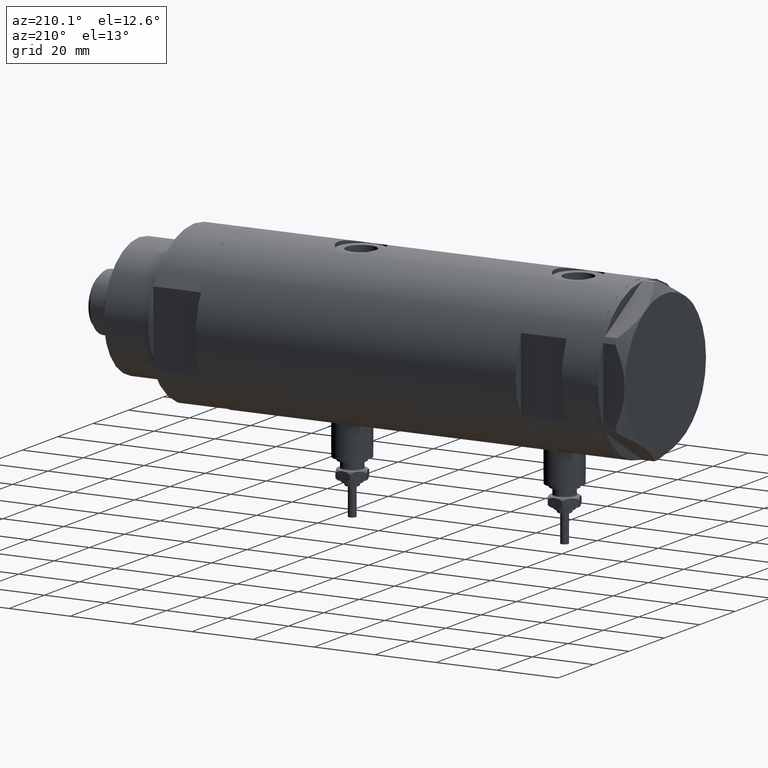
[diagram: clean part render]
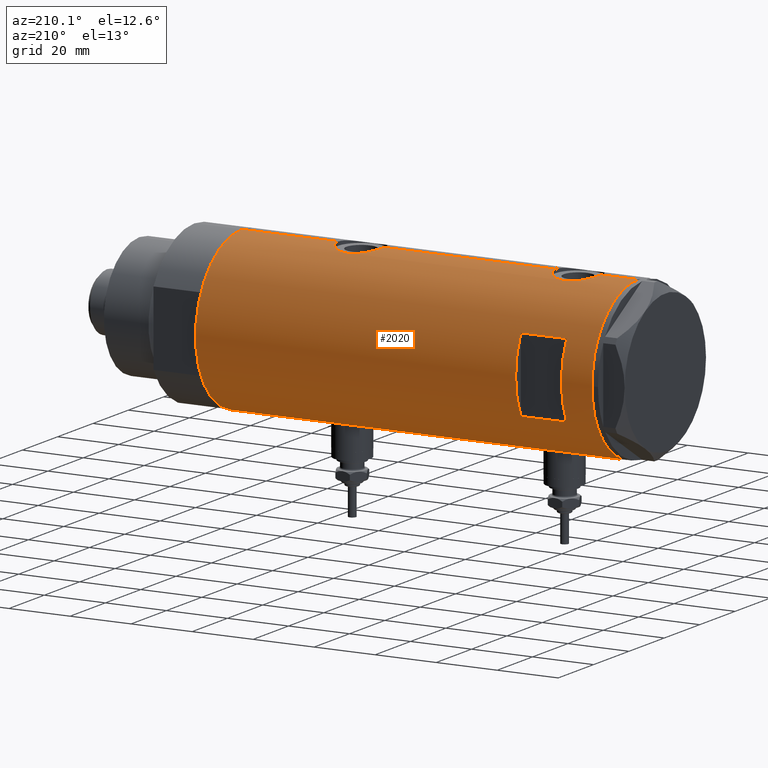
[diagram: same view with one face highlighted and labeled with its STEP entity id]
A machine part, auxiliary view. The second image highlights one B-rep face of the part: STEP entity #2020.
In plain terms, the highlighted cylindrical surface (partial cylindrical patch) has radius 26 mm, axis along (-1, -0, 0).
Its self-contained STEP definition (entity closure, byte-faithful):
#34 = CARTESIAN_POINT ( 'NONE',  ( 26.00000000000000355, 0.4983968644076020582, 37.94999999999999574 ) ) ;
#35 = CARTESIAN_POINT ( 'NONE',  ( 25.41763780493360159, 5.474943943663458157, -20.61823686211066686 ) ) ;
#49 = CARTESIAN_POINT ( 'NONE',  ( 12.12435565298214080, 23.00000000000000355, -64.95000000000000284 ) ) ;
#52 = ORIENTED_EDGE ( 'NONE', *, *, #2459, .T. ) ;
#64 = CARTESIAN_POINT ( 'NONE',  ( 24.97016856345952007, 7.245430721349216618, -27.70303040919392856 ) ) ;
#100 = EDGE_CURVE ( 'NONE', #4957, #748, #2238, .T. ) ;
#157 = CARTESIAN_POINT ( 'NONE',  ( 25.99999999999999645, 0.2455784580650500204, 52.94999999999999574 ) ) ;
#205 = CIRCLE ( 'NONE', #3051, 26.00000000000000355 ) ;
#224 = DIRECTION ( 'NONE',  ( 0.000000000000000000, 0.000000000000000000, 1.000000000000000000 ) ) ;
#247 = CARTESIAN_POINT ( 'NONE',  ( -26.00000000000000355, 3.184081677783118585E-15, -64.95000000000000284 ) ) ;
#252 = CARTESIAN_POINT ( 'NONE',  ( 25.08669247833291394, 6.831361936037319893, 48.55537739403791164 ) ) ;
#273 = CARTESIAN_POINT ( 'NONE',  ( -26.00000000000000355, 3.184077527313362130E-15, 34.70000000000000995 ) ) ;
#281 = CARTESIAN_POINT ( 'NONE',  ( -25.31518616157687873, 5.930210831981639785, -30.66587117207027191 ) ) ;
#308 = EDGE_CURVE ( 'NONE', #5083, #6059, #2968, .T. ) ;
#314 = ORIENTED_EDGE ( 'NONE', *, *, #1534, .F. ) ;
#322 = CARTESIAN_POINT ( 'NONE',  ( -25.36894112891956965, 5.694149517195234544, 38.36517494801691441 ) ) ;
#350 = CARTESIAN_POINT ( 'NONE',  ( -25.85406084573620689, 2.777003695811653738, 46.56412841326095986 ) ) ;
#357 = CARTESIAN_POINT ( 'NONE',  ( 25.88814720404043968, 2.420758939209244343, -32.85288286828453863 ) ) ;
#446 = VERTEX_POINT ( 'NONE', #2910 ) ;
#481 = CARTESIAN_POINT ( 'NONE',  ( -25.95208098418916620, 1.628413954368977290, -34.69806792170714971 ) ) ;
#533 = B_SPLINE_CURVE_WITH_KNOTS ( 'NONE', 3,
 ( #1361, #2263, #2340, #1311, #4651, #357, #2230, #1767, #2724, #3683, #3191, #5155, #849, #6158, #1801, #3715, #3435, #5270, #4324, #64, #4928, #1023, #4862, #3898, #5858, #3932, #2494, #594, #1510, #1883, #5763, #2929, #1424, #960, #35, #2121, #745, #2522, #3116, #2062, #4513, #4000, #4579, #2999, #1234, #4991 ),
 .UNSPECIFIED., .F., .F.,
 ( 4, 2, 2, 2, 2, 2, 2, 2, 2, 2, 2, 2, 2, 2, 2, 2, 2, 2, 2, 2, 2, 2, 4 ),
 ( 2.323866739619147150E-19, 0.001473395154583069609, 0.002210092731874602461, 0.002946790309166135314, 0.004420185463749199718, 0.005156883041040737775, 0.005893580618332274965, 0.007366975772915344139, 0.008840370927498415049, 0.009577068504789943565, 0.01031376608208147208, 0.01178716123666451870, 0.01326055639124756880, 0.01473395154583061542, 0.01547064912312213353, 0.01620734670041365511, 0.01694404427770517321, 0.01768074185499669132, 0.01915413700957973794, 0.02062753216416277763, 0.02210092731874582078, 0.02283762489603734583, 0.02357432247332887087 ),
 .UNSPECIFIED. ) ;
#535 = CARTESIAN_POINT ( 'NONE',  ( 0.000000000000000000, 0.000000000000000000, 54.94999999999999574 ) ) ;
#594 = CARTESIAN_POINT ( 'NONE',  ( 25.08669247833292815, 6.831361936037325222, -22.64462260596210896 ) ) ;
#623 = CARTESIAN_POINT ( 'NONE',  ( 25.93077501166306575, 1.957027822413552220, 52.70697858562407845 ) ) ;
#652 = CARTESIAN_POINT ( 'NONE',  ( 24.89484527721569762, 7.499778575171895945, 44.95449194517064484 ) ) ;
#665 = VERTEX_POINT ( 'NONE', #3986 ) ;
#678 = CARTESIAN_POINT ( 'NONE',  ( 25.20855488770172315, 6.367749707222637667, 49.42002223040957887 ) ) ;
#679 = CARTESIAN_POINT ( 'NONE',  ( -25.38675822915648084, 5.615881323213569587, -25.87693218337989975 ) ) ;
#714 = CARTESIAN_POINT ( 'NONE',  ( -25.23757896588370286, 6.250168635417627350, -29.05675308410500435 ) ) ;
#738 = VERTEX_POINT ( 'NONE', #2433 ) ;
#745 = CARTESIAN_POINT ( 'NONE',  ( 25.59685363299822924, 4.579266302355751606, -19.79027931897348225 ) ) ;
#748 = VERTEX_POINT ( 'NONE', #5640 ) ;
#772 = CARTESIAN_POINT ( 'NONE',  ( -25.38875076695534716, 5.605452563035134617, 38.17814099175895848 ) ) ;
#787 = EDGE_CURVE ( 'NONE', #1889, #1190, #533, .T. ) ;
#805 = CARTESIAN_POINT ( 'NONE',  ( -25.67176285215957421, 4.128807479817785620, 36.24008401548878311 ) ) ;
#806 = CARTESIAN_POINT ( 'NONE',  ( -25.43062364804612940, 5.412314182902757231, -31.78227648580933362 ) ) ;
#827 = ORIENTED_EDGE ( 'NONE', *, *, #2732, .F. ) ;
#849 = CARTESIAN_POINT ( 'NONE',  ( 25.48882460966380137, 5.133289275481216052, -31.22343523597908188 ) ) ;
#895 = CARTESIAN_POINT ( 'NONE',  ( -25.96182217530152769, 1.422664245316465070, 47.03935273092390190 ) ) ;
#917 = DIRECTION ( 'NONE',  ( -0.000000000000000000, -0.000000000000000000, -1.000000000000000000 ) ) ;
#960 = CARTESIAN_POINT ( 'NONE',  ( 25.38117076385348980, 5.641057083563592478, -20.80143420258152531 ) ) ;
#973 = CARTESIAN_POINT ( 'NONE',  ( -25.98789693408479451, 0.8193301824841940917, -34.84948980265348695 ) ) ;
#1023 = CARTESIAN_POINT ( 'NONE',  ( 24.90951684770588059, 7.451587374037536016, -26.73395604521197910 ) ) ;
#1068 = LINE ( 'NONE', #4437, #1566 ) ;
#1077 = CARTESIAN_POINT ( 'NONE',  ( 25.27545867390325185, 6.096774941222090405, 49.82477406957967503 ) ) ;
#1109 = EDGE_CURVE ( 'NONE', #5083, #5749, #4656, .T. ) ;
#1135 = CARTESIAN_POINT ( 'NONE',  ( 25.97197502027376004, 1.230965554787593952, 52.85240824498372803 ) ) ;
#1161 = CARTESIAN_POINT ( 'NONE',  ( -25.57189498399054628, 4.707763994471526381, -24.51909718944451555 ) ) ;
#1168 = ORIENTED_EDGE ( 'NONE', *, *, #4633, .F. ) ;
#1172 = CARTESIAN_POINT ( 'NONE',  ( 26.00000000000000355, -3.975025925197986111E-20, -18.25000000000000355 ) ) ;
#1190 = VERTEX_POINT ( 'NONE', #1172 ) ;
#1229 = CARTESIAN_POINT ( 'NONE',  ( -25.85449082491263795, 2.772892880050689790, -34.26609297485323680 ) ) ;
#1234 = CARTESIAN_POINT ( 'NONE',  ( 26.00000000000001066, 0.2455784580650494098, -18.25000000000000711 ) ) ;
#1259 = CARTESIAN_POINT ( 'NONE',  ( -25.24766879991037172, 6.209837761082653174, 41.76849569029696596 ) ) ;
#1300 = CARTESIAN_POINT ( 'NONE',  ( -26.00000000000000355, 3.184077527325983904E-15, -34.90000000000001279 ) ) ;
#1311 = CARTESIAN_POINT ( 'NONE',  ( 25.94484652078418208, 1.709678645892019455, -33.05665346759175804 ) ) ;
#1330 = CARTESIAN_POINT ( 'NONE',  ( -25.23766275406409321, 6.249830297096026221, 41.36191904555118271 ) ) ;
#1361 = CARTESIAN_POINT ( 'NONE',  ( 26.00000000000000355, 2.393127611988522640E-16, -33.25000000000000000 ) ) ;
#1406 = CARTESIAN_POINT ( 'NONE',  ( -25.59680708126580839, 4.563450671387942137, -32.92543949979971529 ) ) ;
#1424 = CARTESIAN_POINT ( 'NONE',  ( 25.31017500740586357, 5.951503630041862891, -21.17950407362598497 ) ) ;
#1450 = CARTESIAN_POINT ( 'NONE',  ( 12.12435565298213724, 23.00000000000000355, 39.95000000000000284 ) ) ;
#1510 = CARTESIAN_POINT ( 'NONE',  ( 25.11550258961939974, 6.725017566862033114, -22.42071522193981536 ) ) ;
#1534 = EDGE_CURVE ( 'NONE', #446, #4957, #1808, .T. ) ;
#1535 = CARTESIAN_POINT ( 'NONE',  ( 25.38132706741445688, 5.649034551923787895, 40.49268047185955766 ) ) ;
#1566 = VECTOR ( 'NONE', #4022, 1000.000000000000000 ) ;
#1570 = CARTESIAN_POINT ( 'NONE',  ( 26.00000000000000355, -3.975025925197986111E-20, 52.95000000000000284 ) ) ;
#1571 = CARTESIAN_POINT ( 'NONE',  ( -25.95015815577422913, 1.621168830448741938, -22.61041429560181726 ) ) ;
#1600 = CARTESIAN_POINT ( 'NONE',  ( 24.95233689475078975, 7.306396477445178839, 43.73896186853335877 ) ) ;
#1628 = CARTESIAN_POINT ( 'NONE',  ( 24.97016856345953073, 7.245430721349219283, 43.49696959080609560 ) ) ;
#1629 = CARTESIAN_POINT ( 'NONE',  ( -25.27696731428696708, 6.089059008147564178, -27.22583693040520458 ) ) ;
#1650 = VERTEX_POINT ( 'NONE', #5182 ) ;
#1659 = ORIENTED_EDGE ( 'NONE', *, *, #2717, .F. ) ;
#1661 = CARTESIAN_POINT ( 'NONE',  ( 25.78997056644825392, 3.329333406239039839, 52.18834808433850014 ) ) ;
#1694 = CARTESIAN_POINT ( 'NONE',  ( -25.38675822915648084, 5.615881323213569587, 43.72306781662011588 ) ) ;
#1695 = CARTESIAN_POINT ( 'NONE',  ( -25.28673619335055989, 6.048783215285170378, -30.27550990348180093 ) ) ;
#1727 = CARTESIAN_POINT ( 'NONE',  ( -25.59680708126580129, 4.563450671387941249, 36.67456050020032166 ) ) ;
#1728 = CARTESIAN_POINT ( 'NONE',  ( -25.49884629689152860, 5.081547904122037274, -32.29439805696090815 ) ) ;
#1764 = EDGE_CURVE ( 'NONE', #1190, #3169, #2600, .T. ) ;
#1767 = CARTESIAN_POINT ( 'NONE',  ( 25.78922176490238272, 3.335318700939509995, -32.48550568766476232 ) ) ;
#1771 = LINE ( 'NONE', #3376, #4392 ) ;
#1791 = CARTESIAN_POINT ( 'NONE',  ( -25.57189498399055338, 4.707763994471528157, 45.08090281055549298 ) ) ;
#1801 = CARTESIAN_POINT ( 'NONE',  ( 25.30960479024497545, 5.958491152160519277, -30.33139677679963953 ) ) ;
#1808 = LINE ( 'NONE', #5278, #2152 ) ;
#1828 = EDGE_LOOP ( 'NONE', ( #1902, #52, #3510, #4023, #6093, #2811, #5312, #314, #1659, #2599, #4254, #4736 ) ) ;
#1883 = CARTESIAN_POINT ( 'NONE',  ( 25.17636585680006434, 6.493453152855879651, -21.98900750337197607 ) ) ;
#1889 = VERTEX_POINT ( 'NONE', #4450 ) ;
#1893 = CARTESIAN_POINT ( 'NONE',  ( -25.99759026373432391, 0.4091325989570631649, -34.88999890044900809 ) ) ;
#1902 = ORIENTED_EDGE ( 'NONE', *, *, #2865, .T. ) ;
#1904 = CARTESIAN_POINT ( 'NONE',  ( -25.99999999999999289, 0.2043916521039015888, 34.69999999999999574 ) ) ;
#1911 = CARTESIAN_POINT ( 'NONE',  ( 25.92799636947105313, 1.948138538329398317, 38.20322312211786198 ) ) ;
#2003 = CARTESIAN_POINT ( 'NONE',  ( -25.99009688862344447, 0.8219492608955325519, -22.44084060773424838 ) ) ;
#2020 = ADVANCED_FACE ( 'NONE', ( #4782, #2387 ), #5318, .T. ) ;
#2028 = CARTESIAN_POINT ( 'NONE',  ( 25.48882460966379782, 5.133289275481216940, 39.97656476402091386 ) ) ;
#2032 = DIRECTION ( 'NONE',  ( 0.000000000000000000, 0.000000000000000000, 1.000000000000000000 ) ) ;
#2062 = CARTESIAN_POINT ( 'NONE',  ( 25.89067367629246874, 2.424883365422553894, -18.63594795494832113 ) ) ;
#2115 = CARTESIAN_POINT ( 'NONE',  ( 12.12435565298214080, 23.00000000000000355, 54.94999999999999574 ) ) ;
#2121 = CARTESIAN_POINT ( 'NONE',  ( 25.52590365620542912, 4.955152228772150558, -20.09876272411762343 ) ) ;
#2152 = VECTOR ( 'NONE', #2380, 1000.000000000000000 ) ;
#2153 = CARTESIAN_POINT ( 'NONE',  ( -25.81251897318925614, 3.135439098787738743, 46.37199178085172235 ) ) ;
#2191 = CIRCLE ( 'NONE', #5743, 26.00000000000000355 ) ;
#2192 = CARTESIAN_POINT ( 'NONE',  ( -25.49884629689154281, 5.081547904122033721, 37.30560194303911459 ) ) ;
#2193 = CARTESIAN_POINT ( 'NONE',  ( -25.92432690655986605, 2.018143994254073093, -34.57929422822715537 ) ) ;
#2223 = CARTESIAN_POINT ( 'NONE',  ( -25.45277932469922177, 5.307477387851098349, -31.95672800165311855 ) ) ;
#2230 = CARTESIAN_POINT ( 'NONE',  ( 25.86510134953875450, 2.654921787384014298, -32.76867061694905203 ) ) ;
#2238 = CIRCLE ( 'NONE', #3646, 26.00000000000000355 ) ;
#2263 = CARTESIAN_POINT ( 'NONE',  ( 26.00000000000000711, 0.4983968644076019472, -33.25000000000000000 ) ) ;
#2327 = DIRECTION ( 'NONE',  ( 0.000000000000000000, 0.000000000000000000, 1.000000000000000000 ) ) ;
#2334 = CARTESIAN_POINT ( 'NONE',  ( -25.98057228346870673, 1.024901789261881913, 34.78119414145174915 ) ) ;
#2340 = CARTESIAN_POINT ( 'NONE',  ( 25.98569222077104612, 0.9879514382926373184, -33.20081846687561011 ) ) ;
#2353 = CARTESIAN_POINT ( 'NONE',  ( -26.00000000000000000, 0.2043916521038990630, -34.90000000000001279 ) ) ;
#2363 = CARTESIAN_POINT ( 'NONE',  ( -26.00000000000000355, 3.184077527313362130E-15, 34.70000000000000995 ) ) ;
#2380 = DIRECTION ( 'NONE',  ( 0.000000000000000000, 0.000000000000000000, 1.000000000000000000 ) ) ;
#2387 = FACE_OUTER_BOUND ( 'NONE', #1828, .T. ) ;
#2426 = CARTESIAN_POINT ( 'NONE',  ( 0.000000000000000000, 0.000000000000000000, 39.95000000000000284 ) ) ;
#2433 = CARTESIAN_POINT ( 'NONE',  ( -12.12435565298214080, 23.00000000000000355, 39.95000000000000284 ) ) ;
#2436 = VECTOR ( 'NONE', #4218, 1000.000000000000000 ) ;
#2446 = CARTESIAN_POINT ( 'NONE',  ( -26.00000000000000355, 3.184077527325983904E-15, -34.90000000000001279 ) ) ;
#2459 = EDGE_CURVE ( 'NONE', #1650, #6059, #1771, .T. ) ;
#2490 = CARTESIAN_POINT ( 'NONE',  ( 25.30960479024496834, 5.958491152160524607, 40.86860322320038819 ) ) ;
#2491 = CARTESIAN_POINT ( 'NONE',  ( -25.52242378584899996, 4.965907353613392416, -24.83280397078263135 ) ) ;
#2494 = CARTESIAN_POINT ( 'NONE',  ( 25.00820649268565532, 7.115348876445588111, -23.32815999524548900 ) ) ;
#2519 = CARTESIAN_POINT ( 'NONE',  ( 25.38117076385347914, 5.641057083563588925, 50.39856579741849885 ) ) ;
#2522 = CARTESIAN_POINT ( 'NONE',  ( 25.72868876879097400, 3.768709330223694920, -19.24732513129935541 ) ) ;
#2557 = CARTESIAN_POINT ( 'NONE',  ( 25.89067367629246164, 2.424883365422555670, 52.56405204505168172 ) ) ;
#2558 = CARTESIAN_POINT ( 'NONE',  ( -25.33346170681505072, 5.849967696906719361, -26.44052947900495099 ) ) ;
#2594 = CARTESIAN_POINT ( 'NONE',  ( -25.24766879991037172, 6.209837761082654950, -27.83150430970304967 ) ) ;
#2599 = ORIENTED_EDGE ( 'NONE', *, *, #1764, .F. ) ;
#2600 = LINE ( 'NONE', #4520, #4290 ) ;
#2613 = ORIENTED_EDGE ( 'NONE', *, *, #5685, .F. ) ;
#2622 = CARTESIAN_POINT ( 'NONE',  ( -26.00000000000000355, 6.504536358106463690E-16, -22.40000000000000568 ) ) ;
#2625 = DIRECTION ( 'NONE',  ( 1.000000000000000000, 0.000000000000000000, 0.000000000000000000 ) ) ;
#2651 = CARTESIAN_POINT ( 'NONE',  ( -25.43062364804612230, 5.412314182902753679, 37.81772351419070333 ) ) ;
#2689 = CARTESIAN_POINT ( 'NONE',  ( -25.85449082491264861, 2.772892880050687126, 35.33390702514679305 ) ) ;
#2690 = CARTESIAN_POINT ( 'NONE',  ( -25.98057228346869607, 1.024901789261881246, -34.81880585854827359 ) ) ;
#2715 = CARTESIAN_POINT ( 'NONE',  ( -26.00000000000000711, 0.4145874687851189289, 47.20000000000000995 ) ) ;
#2717 = EDGE_CURVE ( 'NONE', #3169, #446, #4184, .T. ) ;
#2724 = CARTESIAN_POINT ( 'NONE',  ( 25.72923282622329211, 3.765147152416742138, -32.25485575784708914 ) ) ;
#2732 = EDGE_CURVE ( 'NONE', #738, #4613, #4509, .T. ) ;
#2811 = ORIENTED_EDGE ( 'NONE', *, *, #3039, .T. ) ;
#2844 = CIRCLE ( 'NONE', #3365, 26.00000000000000355 ) ;
#2847 = EDGE_CURVE ( 'NONE', #5857, #5749, #2936, .T. ) ;
#2865 = EDGE_CURVE ( 'NONE', #665, #1650, #205, .T. ) ;
#2870 = DIRECTION ( 'NONE',  ( -0.000000000000000000, -0.000000000000000000, -1.000000000000000000 ) ) ;
#2899 = CARTESIAN_POINT ( 'NONE',  ( 25.94484652078419273, 1.709678645892021009, 38.14334653240825190 ) ) ;
#2910 = CARTESIAN_POINT ( 'NONE',  ( 26.00000000000000355, -3.975025925197986111E-20, 52.95000000000000284 ) ) ;
#2929 = CARTESIAN_POINT ( 'NONE',  ( 25.27545867390324474, 6.096774941222093069, -21.37522593042035268 ) ) ;
#2936 = B_SPLINE_CURVE_WITH_KNOTS ( 'NONE', 3,
 ( #3236, #2715, #5204, #895, #4738, #5143, #4673, #350, #2153, #4201, #6146, #1791, #3701, #6045, #1694, #3605, #5663, #5172, #5553, #1259, #1330, #3211, #3110, #5113, #4643, #322, #772, #2651, #4609, #2192, #4132, #6077, #1727, #805, #3630, #5587, #2689, #5233, #4765, #2334, #3819, #6209, #1904, #2363 ),
 .UNSPECIFIED., .F., .F.,
 ( 4, 2, 2, 2, 2, 2, 2, 2, 2, 2, 2, 2, 2, 2, 2, 2, 2, 2, 2, 2, 2, 4 ),
 ( 2.732276935479321607E-19, 0.001225774033668403139, 0.001838661050502602649, 0.002451548067336802375, 0.003677322101005202262, 0.004903096134673601281, 0.006128870168342001601, 0.007354644202010401054, 0.007967531218844600346, 0.008580418235678800506, 0.009806192269347199092, 0.01103196630301559768, 0.01225774033668399626, 0.01287062735351819469, 0.01348351437035239485, 0.01409640138718659501, 0.01470928840402079343, 0.01593506243768920069, 0.01716083647135761142, 0.01838661050502602215, 0.01899949752186022578, 0.01961238453869442941 ),
 .UNSPECIFIED. ) ;
#2960 = VECTOR ( 'NONE', #917, 1000.000000000000000 ) ;
#2965 = CARTESIAN_POINT ( 'NONE',  ( 25.17636585680005368, 6.493453152855872546, 49.21099249662802322 ) ) ;
#2967 = CARTESIAN_POINT ( 'NONE',  ( -25.81251897318926325, 3.135439098787736079, -23.22800821914827907 ) ) ;
#2968 = B_SPLINE_CURVE_WITH_KNOTS ( 'NONE', 3,
 ( #2622, #5914, #2003, #3529, #1571, #4031, #3930, #4547, #2967, #4988, #4925, #1161, #2491, #3470, #679, #2558, #4510, #5982, #1629, #2594, #5029, #714, #5114, #1695, #281, #5144, #6108, #806, #2223, #1728, #3606, #5554, #1406, #3667, #5588, #5627, #1229, #2193, #481, #2690, #973, #1893, #2353, #1300 ),
 .UNSPECIFIED., .F., .F.,
 ( 4, 2, 2, 2, 2, 2, 2, 2, 2, 2, 2, 2, 2, 2, 2, 2, 2, 2, 2, 2, 2, 4 ),
 ( 6.317748427911702731E-19, 0.001225774033668404657, 0.001838661050502606769, 0.002451548067336808447, 0.003677322101005209200, 0.004903096134673610822, 0.006128870168342010274, 0.007354644202010409727, 0.007967531218844607285, 0.008580418235678805711, 0.009806192269347214704, 0.01103196630301562370, 0.01225774033668403096, 0.01287062735351823459, 0.01348351437035243995, 0.01409640138718664358, 0.01470928840402084894, 0.01593506243768924233, 0.01716083647135763571, 0.01838661050502602909, 0.01899949752186022925, 0.01961238453869442941 ),
 .UNSPECIFIED. ) ;
#2969 = DIRECTION ( 'NONE',  ( 1.000000000000000000, -5.329070518200751394E-15, 0.000000000000000000 ) ) ;
#2997 = CARTESIAN_POINT ( 'NONE',  ( 25.98255381630415428, 0.9836221648041301169, 52.88933098058191717 ) ) ;
#2999 = CARTESIAN_POINT ( 'NONE',  ( 25.99652140603931372, 0.4914164889130555047, -18.26203179519542985 ) ) ;
#3025 = CARTESIAN_POINT ( 'NONE',  ( 25.99652140603931016, 0.4914164889130518965, 52.93796820480459075 ) ) ;
#3039 = EDGE_CURVE ( 'NONE', #5857, #748, #3045, .T. ) ;
#3045 = LINE ( 'NONE', #247, #5829 ) ;
#3051 = AXIS2_PLACEMENT_3D ( 'NONE', #4286, #4316, #3844 ) ;
#3086 = CARTESIAN_POINT ( 'NONE',  ( 0.000000000000000000, 0.000000000000000000, 64.95000000000000284 ) ) ;
#3100 = CARTESIAN_POINT ( 'NONE',  ( -26.00000000000000355, 6.504536358106463690E-16, -22.40000000000000568 ) ) ;
#3110 = CARTESIAN_POINT ( 'NONE',  ( -25.24784248027030031, 6.209126813737962713, 40.12731838311943733 ) ) ;
#3116 = CARTESIAN_POINT ( 'NONE',  ( 25.78997056644825392, 3.329333406239042059, -19.01165191566154533 ) ) ;
#3131 = CARTESIAN_POINT ( 'NONE',  ( 26.00000000000000355, 0.000000000000000000, 64.95000000000000284 ) ) ;
#3169 = VERTEX_POINT ( 'NONE', #6096 ) ;
#3191 = CARTESIAN_POINT ( 'NONE',  ( 25.59528664075984494, 4.573671112500301561, -31.69909503516726801 ) ) ;
#3211 = CARTESIAN_POINT ( 'NONE',  ( -25.23757896588370286, 6.250168635417627350, 40.54324691589500418 ) ) ;
#3236 = CARTESIAN_POINT ( 'NONE',  ( -26.00000000000000355, -2.813058302341337106E-16, 47.20000000000000284 ) ) ;
#3293 = CARTESIAN_POINT ( 'NONE',  ( -12.12435565298214080, 23.00000000000000355, 54.94999999999999574 ) ) ;
#3365 = AXIS2_PLACEMENT_3D ( 'NONE', #535, #2870, #2969 ) ;
#3371 = CARTESIAN_POINT ( 'NONE',  ( 25.98569222077104257, 0.9879514382926377625, 37.99918153312438562 ) ) ;
#3376 = CARTESIAN_POINT ( 'NONE',  ( -26.00000000000000355, 3.184081677783118585E-15, -64.95000000000000284 ) ) ;
#3432 = CARTESIAN_POINT ( 'NONE',  ( 25.31017500740586357, 5.951503630041860227, 50.02049592637403919 ) ) ;
#3435 = CARTESIAN_POINT ( 'NONE',  ( 25.11254978876589306, 6.737777305585156640, -29.08025351746412923 ) ) ;
#3469 = CARTESIAN_POINT ( 'NONE',  ( 25.17424625143662453, 6.506691718592097828, 41.68758373966274888 ) ) ;
#3470 = CARTESIAN_POINT ( 'NONE',  ( -25.42927140605241121, 5.422776733968212248, -25.51556003986717158 ) ) ;
#3499 = CARTESIAN_POINT ( 'NONE',  ( 25.72868876879096689, 3.768709330223694920, 51.95267486870065454 ) ) ;
#3510 = ORIENTED_EDGE ( 'NONE', *, *, #308, .F. ) ;
#3529 = CARTESIAN_POINT ( 'NONE',  ( -25.96182217530153125, 1.422664245316465514, -22.56064726907610662 ) ) ;
#3605 = CARTESIAN_POINT ( 'NONE',  ( -25.33346170681504717, 5.849967696906719361, 43.15947052099508596 ) ) ;
#3606 = CARTESIAN_POINT ( 'NONE',  ( -25.52275868012767290, 4.960454986366449326, -32.45761629406632665 ) ) ;
#3630 = CARTESIAN_POINT ( 'NONE',  ( -25.72087293759780380, 3.814831448865741770, 35.98261705172143365 ) ) ;
#3646 = AXIS2_PLACEMENT_3D ( 'NONE', #3086, #4135, #2625 ) ;
#3667 = CARTESIAN_POINT ( 'NONE',  ( -25.67176285215957066, 4.128807479817786508, -33.35991598451123963 ) ) ;
#3683 = CARTESIAN_POINT ( 'NONE',  ( 25.63006864069250312, 4.375159448492143888, -31.84654411758883086 ) ) ;
#3701 = CARTESIAN_POINT ( 'NONE',  ( -25.52242378584899285, 4.965907353613394193, 44.76719602921738783 ) ) ;
#3714 = DIRECTION ( 'NONE',  ( -1.000000000000000000, -5.329070518200751394E-15, 0.000000000000000000 ) ) ;
#3715 = CARTESIAN_POINT ( 'NONE',  ( 25.17424625143663164, 6.506691718592095164, -29.51241626033726817 ) ) ;
#3728 = VERTEX_POINT ( 'NONE', #1450 ) ;
#3785 = DIRECTION ( 'NONE',  ( 1.000000000000000000, 0.000000000000000000, 0.000000000000000000 ) ) ;
#3819 = CARTESIAN_POINT ( 'NONE',  ( -25.98789693408479451, 0.8193301824841956460, 34.75051019734654290 ) ) ;
#3824 = CARTESIAN_POINT ( 'NONE',  ( 25.88814720404043257, 2.420758939209243898, 38.34711713171545000 ) ) ;
#3827 = EDGE_CURVE ( 'NONE', #4613, #4304, #2844, .T. ) ;
#3844 = DIRECTION ( 'NONE',  ( 1.000000000000000000, 0.000000000000000000, 0.000000000000000000 ) ) ;
#3898 = CARTESIAN_POINT ( 'NONE',  ( 24.89471231507667781, 7.500219916954786292, -25.26121773116972591 ) ) ;
#3929 = CARTESIAN_POINT ( 'NONE',  ( 25.63006864069250668, 4.375159448492148329, 39.35345588241118975 ) ) ;
#3930 = CARTESIAN_POINT ( 'NONE',  ( -25.90661719257679252, 2.209805098346973917, -22.80011254218480587 ) ) ;
#3932 = CARTESIAN_POINT ( 'NONE',  ( 24.96662810169868862, 7.257932614256870529, -23.79702690473265747 ) ) ;
#3958 = CARTESIAN_POINT ( 'NONE',  ( -12.12435565298214080, 23.00000000000000355, -64.95000000000000284 ) ) ;
#3986 = CARTESIAN_POINT ( 'NONE',  ( 26.00000000000000355, 0.000000000000000000, -64.95000000000000284 ) ) ;
#4000 = CARTESIAN_POINT ( 'NONE',  ( 25.97197502027376714, 1.230965554787595728, -18.34759175501625350 ) ) ;
#4022 = DIRECTION ( 'NONE',  ( 0.000000000000000000, 0.000000000000000000, 1.000000000000000000 ) ) ;
#4023 = ORIENTED_EDGE ( 'NONE', *, *, #1109, .T. ) ;
#4031 = CARTESIAN_POINT ( 'NONE',  ( -25.92257874449350652, 2.014648337067150408, -22.73003581636324810 ) ) ;
#4059 = CARTESIAN_POINT ( 'NONE',  ( 24.89471231507667071, 7.500219916954787180, 45.93878226883028759 ) ) ;
#4132 = CARTESIAN_POINT ( 'NONE',  ( -25.52275868012767646, 4.960454986366448438, 37.14238370593369609 ) ) ;
#4135 = DIRECTION ( 'NONE',  ( 0.000000000000000000, 0.000000000000000000, 1.000000000000000000 ) ) ;
#4178 = CARTESIAN_POINT ( 'NONE',  ( -26.00000000000000355, 3.184081677783118585E-15, -64.95000000000000284 ) ) ;
#4184 = B_SPLINE_CURVE_WITH_KNOTS ( 'NONE', 3,
 ( #4322, #34, #3371, #2899, #1911, #3824, #4859, #5788, #4377, #3929, #5480, #5913, #2028, #1535, #2490, #3469, #5517, #5950, #4546, #1628, #1600, #4443, #652, #4059, #4987, #5981, #5394, #252, #5426, #2965, #678, #1077, #3432, #2519, #5886, #4924, #6010, #3499, #1661, #2557, #623, #1135, #2997, #3025, #157, #1570 ),
 .UNSPECIFIED., .F., .F.,
 ( 4, 2, 2, 2, 2, 2, 2, 2, 2, 2, 2, 2, 2, 2, 2, 2, 2, 2, 2, 2, 2, 2, 4 ),
 ( 2.323866739619147150E-19, 0.001473395154583068958, 0.002210092731874605497, 0.002946790309166141819, 0.004420185463749206657, 0.005156883041040739510, 0.005893580618332274097, 0.007366975772915325057, 0.008840370927498376885, 0.009577068504789901932, 0.01031376608208142698, 0.01178716123666447707, 0.01326055639124752716, 0.01473395154583057726, 0.01547064912312210404, 0.01620734670041363082, 0.01694404427770515587, 0.01768074185499668438, 0.01915413700957973447, 0.02062753216416278457, 0.02210092731874583813, 0.02283762489603735971, 0.02357432247332888128 ),
 .UNSPECIFIED. ) ;
#4201 = CARTESIAN_POINT ( 'NONE',  ( -25.72105193281917224, 3.813738527046911297, 45.91833691099433423 ) ) ;
#4218 = DIRECTION ( 'NONE',  ( 0.000000000000000000, 0.000000000000000000, 1.000000000000000000 ) ) ;
#4254 = ORIENTED_EDGE ( 'NONE', *, *, #787, .F. ) ;
#4286 = CARTESIAN_POINT ( 'NONE',  ( 0.000000000000000000, 0.000000000000000000, -64.95000000000000284 ) ) ;
#4290 = VECTOR ( 'NONE', #2032, 1000.000000000000000 ) ;
#4294 = AXIS2_PLACEMENT_3D ( 'NONE', #5285, #2327, #3785 ) ;
#4304 = VERTEX_POINT ( 'NONE', #2115 ) ;
#4316 = DIRECTION ( 'NONE',  ( 0.000000000000000000, 0.000000000000000000, 1.000000000000000000 ) ) ;
#4320 = EDGE_CURVE ( 'NONE', #665, #1889, #1068, .T. ) ;
#4322 = CARTESIAN_POINT ( 'NONE',  ( 26.00000000000000355, 2.393127611988522640E-16, 37.95000000000000284 ) ) ;
#4324 = CARTESIAN_POINT ( 'NONE',  ( 25.01140519645288407, 7.101774040639619479, -28.17392235700823733 ) ) ;
#4334 = LINE ( 'NONE', #49, #2960 ) ;
#4353 = DIRECTION ( 'NONE',  ( 0.000000000000000000, 0.000000000000000000, 1.000000000000000000 ) ) ;
#4377 = CARTESIAN_POINT ( 'NONE',  ( 25.72923282622329211, 3.765147152416744802, 38.94514424215291371 ) ) ;
#4392 = VECTOR ( 'NONE', #4353, 1000.000000000000000 ) ;
#4437 = CARTESIAN_POINT ( 'NONE',  ( 26.00000000000000355, 0.000000000000000000, -64.95000000000000284 ) ) ;
#4443 = CARTESIAN_POINT ( 'NONE',  ( 24.90951684770588059, 7.451587374037537792, 44.46604395478804861 ) ) ;
#4450 = CARTESIAN_POINT ( 'NONE',  ( 26.00000000000000355, 2.393127611988522640E-16, -33.25000000000000000 ) ) ;
#4509 = LINE ( 'NONE', #3958, #5726 ) ;
#4510 = CARTESIAN_POINT ( 'NONE',  ( -25.31738333113901973, 5.918941409682879851, -26.63242077527679541 ) ) ;
#4513 = CARTESIAN_POINT ( 'NONE',  ( 25.93077501166307286, 1.957027822413548890, -18.49302141437590663 ) ) ;
#4520 = CARTESIAN_POINT ( 'NONE',  ( 26.00000000000000355, 0.000000000000000000, -64.95000000000000284 ) ) ;
#4546 = CARTESIAN_POINT ( 'NONE',  ( 25.01140519645289828, 7.101774040639625696, 43.02607764299177973 ) ) ;
#4547 = CARTESIAN_POINT ( 'NONE',  ( -25.85406084573621399, 2.777003695811652406, -23.03587158673905222 ) ) ;
#4579 = CARTESIAN_POINT ( 'NONE',  ( 25.98255381630416494, 0.9836221648041316712, -18.31066901941808212 ) ) ;
#4609 = CARTESIAN_POINT ( 'NONE',  ( -25.45277932469921822, 5.307477387851097461, 37.64327199834690418 ) ) ;
#4613 = VERTEX_POINT ( 'NONE', #3293 ) ;
#4633 = EDGE_CURVE ( 'NONE', #4304, #3728, #4334, .T. ) ;
#4643 = CARTESIAN_POINT ( 'NONE',  ( -25.31518616157687163, 5.930210831981637121, 38.93412882792975438 ) ) ;
#4651 = CARTESIAN_POINT ( 'NONE',  ( 25.92799636947105668, 1.948138538329397651, -32.99677687788214797 ) ) ;
#4656 = LINE ( 'NONE', #4178, #2436 ) ;
#4673 = CARTESIAN_POINT ( 'NONE',  ( -25.90661719257679252, 2.209805098346976138, 46.79988745781523107 ) ) ;
#4736 = ORIENTED_EDGE ( 'NONE', *, *, #4320, .F. ) ;
#4738 = CARTESIAN_POINT ( 'NONE',  ( -25.95015815577423268, 1.621168830448741938, 46.98958570439819482 ) ) ;
#4765 = CARTESIAN_POINT ( 'NONE',  ( -25.95208098418916620, 1.628413954368980399, 34.90193207829285882 ) ) ;
#4782 = FACE_BOUND ( 'NONE', #4995, .T. ) ;
#4859 = CARTESIAN_POINT ( 'NONE',  ( 25.86510134953875450, 2.654921787384014298, 38.43132938305095792 ) ) ;
#4862 = CARTESIAN_POINT ( 'NONE',  ( 24.89484527721569052, 7.499778575171895056, -26.24550805482937932 ) ) ;
#4924 = CARTESIAN_POINT ( 'NONE',  ( 25.52590365620542912, 4.955152228772151446, 51.10123727588237585 ) ) ;
#4925 = CARTESIAN_POINT ( 'NONE',  ( -25.67095236150574067, 4.133649689219789813, -23.94464771725742480 ) ) ;
#4928 = CARTESIAN_POINT ( 'NONE',  ( 24.95233689475079686, 7.306396477445174398, -27.46103813146666894 ) ) ;
#4957 = VERTEX_POINT ( 'NONE', #3131 ) ;
#4987 = CARTESIAN_POINT ( 'NONE',  ( 24.90976107960111818, 7.450765568638821890, 46.43882869351466525 ) ) ;
#4988 = CARTESIAN_POINT ( 'NONE',  ( -25.72105193281918645, 3.813738527046909965, -23.68166308900569206 ) ) ;
#4991 = CARTESIAN_POINT ( 'NONE',  ( 26.00000000000000355, -3.975025925197986111E-20, -18.25000000000000355 ) ) ;
#4995 = EDGE_LOOP ( 'NONE', ( #2613, #1168, #5321, #827 ) ) ;
#5018 = DIRECTION ( 'NONE',  ( 0.000000000000000000, 0.000000000000000000, 1.000000000000000000 ) ) ;
#5029 = CARTESIAN_POINT ( 'NONE',  ( -25.23766275406409676, 6.249830297096026221, -28.23808095444883293 ) ) ;
#5083 = VERTEX_POINT ( 'NONE', #3100 ) ;
#5113 = CARTESIAN_POINT ( 'NONE',  ( -25.28673619335055278, 6.048783215285168602, 39.32449009651818983 ) ) ;
#5114 = CARTESIAN_POINT ( 'NONE',  ( -25.24784248027029321, 6.209126813737962713, -29.47268161688058896 ) ) ;
#5143 = CARTESIAN_POINT ( 'NONE',  ( -25.92257874449351007, 2.014648337067150408, 46.86996418363678174 ) ) ;
#5144 = CARTESIAN_POINT ( 'NONE',  ( -25.36894112891956610, 5.694149517195235433, -31.23482505198308701 ) ) ;
#5155 = CARTESIAN_POINT ( 'NONE',  ( 25.52465069878074644, 4.952713637311400241, -31.38744860815255322 ) ) ;
#5172 = CARTESIAN_POINT ( 'NONE',  ( -25.28915991580759837, 6.038390257328908106, 42.57552651146906442 ) ) ;
#5182 = CARTESIAN_POINT ( 'NONE',  ( -26.00000000000000355, 3.184081677783118585E-15, -64.95000000000000284 ) ) ;
#5204 = CARTESIAN_POINT ( 'NONE',  ( -25.99009688862344092, 0.8219492608955323298, 47.15915939226577080 ) ) ;
#5233 = CARTESIAN_POINT ( 'NONE',  ( -25.92432690655986960, 2.018143994254070872, 35.02070577177285315 ) ) ;
#5270 = CARTESIAN_POINT ( 'NONE',  ( 25.03487248886523275, 7.018875226450790095, -28.40423217392064714 ) ) ;
#5278 = CARTESIAN_POINT ( 'NONE',  ( 26.00000000000000355, 0.000000000000000000, -64.95000000000000284 ) ) ;
#5285 = CARTESIAN_POINT ( 'NONE',  ( 0.000000000000000000, 0.000000000000000000, -64.95000000000000284 ) ) ;
#5312 = ORIENTED_EDGE ( 'NONE', *, *, #100, .F. ) ;
#5318 = CYLINDRICAL_SURFACE ( 'NONE', #4294, 26.00000000000000355 ) ;
#5321 = ORIENTED_EDGE ( 'NONE', *, *, #3827, .F. ) ;
#5394 = CARTESIAN_POINT ( 'NONE',  ( 25.00820649268565887, 7.115348876445586335, 47.87184000475451739 ) ) ;
#5426 = CARTESIAN_POINT ( 'NONE',  ( 25.11550258961939974, 6.725017566862028673, 48.77928477806020879 ) ) ;
#5480 = CARTESIAN_POINT ( 'NONE',  ( 25.59528664075984850, 4.573671112500303337, 39.50090496483275615 ) ) ;
#5517 = CARTESIAN_POINT ( 'NONE',  ( 25.11254978876589661, 6.737777305585160192, 42.11974648253588782 ) ) ;
#5553 = CARTESIAN_POINT ( 'NONE',  ( -25.27696731428695998, 6.089059008147561514, 42.37416306959482171 ) ) ;
#5554 = CARTESIAN_POINT ( 'NONE',  ( -25.57167265924275057, 4.701795585128875743, -32.77276288310034147 ) ) ;
#5587 = CARTESIAN_POINT ( 'NONE',  ( -25.81206132723605506, 3.139065735901517495, 35.53021230639125605 ) ) ;
#5588 = CARTESIAN_POINT ( 'NONE',  ( -25.72087293759780025, 3.814831448865734220, -33.61738294827858908 ) ) ;
#5627 = CARTESIAN_POINT ( 'NONE',  ( -25.81206132723604441, 3.139065735901509502, -34.06978769360877379 ) ) ;
#5640 = CARTESIAN_POINT ( 'NONE',  ( -26.00000000000000355, 3.184081677783118585E-15, 64.95000000000000284 ) ) ;
#5663 = CARTESIAN_POINT ( 'NONE',  ( -25.31738333113901973, 5.918941409682879851, 42.96757922472323799 ) ) ;
#5685 = EDGE_CURVE ( 'NONE', #3728, #738, #2191, .T. ) ;
#5726 = VECTOR ( 'NONE', #224, 1000.000000000000000 ) ;
#5743 = AXIS2_PLACEMENT_3D ( 'NONE', #2426, #5785, #3714 ) ;
#5749 = VERTEX_POINT ( 'NONE', #273 ) ;
#5763 = CARTESIAN_POINT ( 'NONE',  ( 25.20855488770173380, 6.367749707222642996, -21.77997776959044529 ) ) ;
#5785 = DIRECTION ( 'NONE',  ( -0.000000000000000000, -0.000000000000000000, 1.000000000000000000 ) ) ;
#5788 = CARTESIAN_POINT ( 'NONE',  ( 25.78922176490237561, 3.335318700939509107, 38.71449431233524052 ) ) ;
#5829 = VECTOR ( 'NONE', #5018, 1000.000000000000000 ) ;
#5857 = VERTEX_POINT ( 'NONE', #6070 ) ;
#5858 = CARTESIAN_POINT ( 'NONE',  ( 24.90976107960111818, 7.450765568638824554, -24.76117130648535536 ) ) ;
#5886 = CARTESIAN_POINT ( 'NONE',  ( 25.41763780493359803, 5.474943943663455492, 50.58176313788934664 ) ) ;
#5913 = CARTESIAN_POINT ( 'NONE',  ( 25.52465069878074644, 4.952713637311401129, 39.81255139184744252 ) ) ;
#5914 = CARTESIAN_POINT ( 'NONE',  ( -26.00000000000001066, 0.4145874687851188733, -22.40000000000000568 ) ) ;
#5950 = CARTESIAN_POINT ( 'NONE',  ( 25.03487248886524696, 7.018875226450792759, 42.79576782607939123 ) ) ;
#5981 = CARTESIAN_POINT ( 'NONE',  ( 24.96662810169870284, 7.257932614256869641, 47.40297309526737024 ) ) ;
#5982 = CARTESIAN_POINT ( 'NONE',  ( -25.28915991580760192, 6.038390257328914323, -27.02447348853096543 ) ) ;
#6010 = CARTESIAN_POINT ( 'NONE',  ( 25.59685363299823280, 4.579266302355747165, 51.40972068102655612 ) ) ;
#6045 = CARTESIAN_POINT ( 'NONE',  ( -25.42927140605241121, 5.422776733968213136, 44.08443996013283339 ) ) ;
#6059 = VERTEX_POINT ( 'NONE', #2446 ) ;
#6070 = CARTESIAN_POINT ( 'NONE',  ( -26.00000000000000355, -2.813058302341337106E-16, 47.20000000000000284 ) ) ;
#6077 = CARTESIAN_POINT ( 'NONE',  ( -25.57167265924276123, 4.701795585128874855, 36.82723711689969548 ) ) ;
#6093 = ORIENTED_EDGE ( 'NONE', *, *, #2847, .F. ) ;
#6096 = CARTESIAN_POINT ( 'NONE',  ( 26.00000000000000355, 2.393127611988522640E-16, 37.95000000000000284 ) ) ;
#6108 = CARTESIAN_POINT ( 'NONE',  ( -25.38875076695534361, 5.605452563035134617, -31.42185900824105715 ) ) ;
#6146 = CARTESIAN_POINT ( 'NONE',  ( -25.67095236150574067, 4.133649689219791590, 45.65535228274259083 ) ) ;
#6158 = CARTESIAN_POINT ( 'NONE',  ( 25.38132706741445688, 5.649034551923785230, -30.70731952814045940 ) ) ;
#6209 = CARTESIAN_POINT ( 'NONE',  ( -25.99759026373432036, 0.4091325989570642196, 34.71000109955101465 ) ) ;